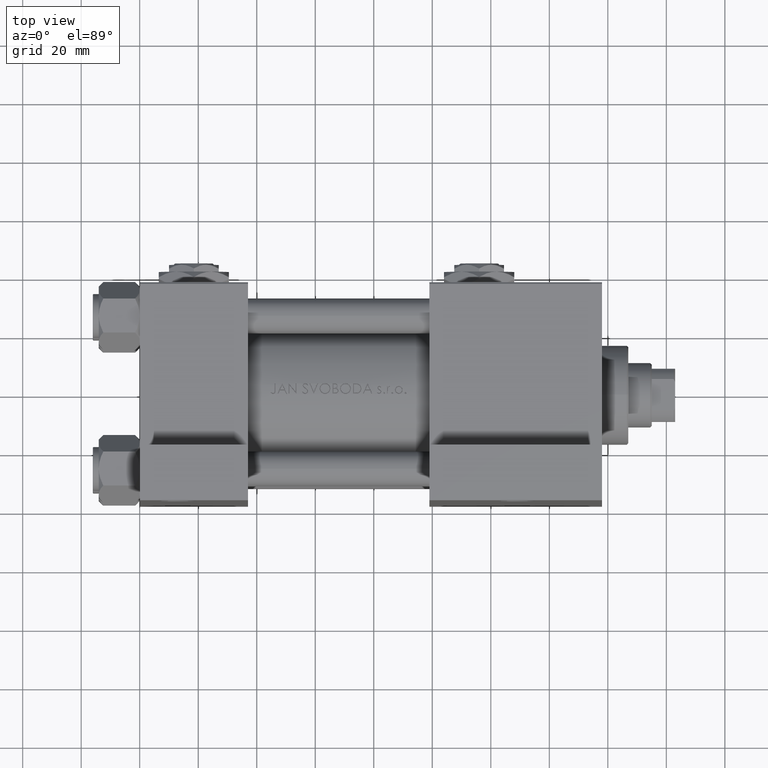
[diagram: clean part render]
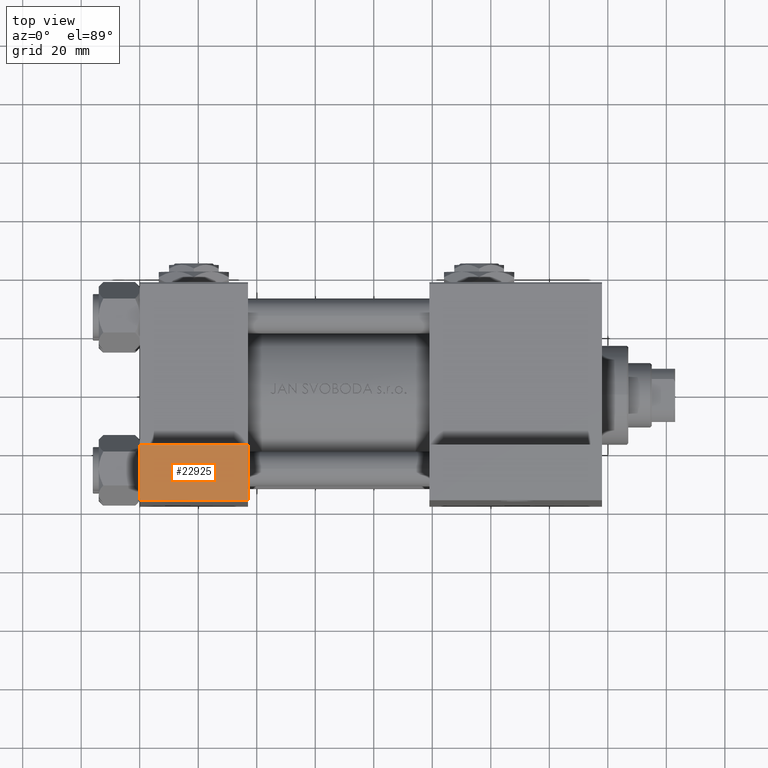
[diagram: same view with one face highlighted and labeled with its STEP entity id]
A machine part, top view. The second image highlights one B-rep face of the part: STEP entity #22925.
In plain terms, the highlighted planar face has unit normal (0, 0, 1).
Its self-contained STEP definition (entity closure, byte-faithful):
#2863 = EDGE_CURVE ( 'NONE', #17655, #12797, #47961, .T. ) ;
#6317 = CARTESIAN_POINT ( 'NONE',  ( 3.977209754999747208E-16, -63.50000000000000000, -37.49999999999999289 ) ) ;
#7331 = DIRECTION ( 'NONE',  ( 1.000000000000000000, 0.000000000000000000, 0.000000000000000000 ) ) ;
#7407 = EDGE_LOOP ( 'NONE', ( #20606, #21463, #17558, #41141 ) ) ;
#7761 = CARTESIAN_POINT ( 'NONE',  ( 3.977209754999747208E-16, -63.50000000000000000, -18.50000000000000355 ) ) ;
#9408 = DIRECTION ( 'NONE',  ( 0.000000000000000000, -1.734723475976806848E-16, -1.000000000000000000 ) ) ;
#10783 = VERTEX_POINT ( 'NONE', #24120 ) ;
#11060 = LINE ( 'NONE', #11546, #38242 ) ;
#11546 = CARTESIAN_POINT ( 'NONE',  ( 3.977209754999747208E-16, -63.50000000000000000, -18.50000000000000355 ) ) ;
#12797 = VERTEX_POINT ( 'NONE', #37684 ) ;
#13735 = AXIS2_PLACEMENT_3D ( 'NONE', #44802, #24780, #39864 ) ;
#16236 = LINE ( 'NONE', #31324, #23701 ) ;
#17558 = ORIENTED_EDGE ( 'NONE', *, *, #2863, .F. ) ;
#17655 = VERTEX_POINT ( 'NONE', #30366 ) ;
#20606 = ORIENTED_EDGE ( 'NONE', *, *, #23934, .F. ) ;
#21343 = VECTOR ( 'NONE', #9408, 1000.000000000000000 ) ;
#21463 = ORIENTED_EDGE ( 'NONE', *, *, #33673, .T. ) ;
#22925 = ADVANCED_FACE ( 'NONE', ( #29701 ), #48047, .T. ) ;
#23701 = VECTOR ( 'NONE', #35534, 1000.000000000000000 ) ;
#23934 = EDGE_CURVE ( 'NONE', #25219, #10783, #11060, .T. ) ;
#24120 = CARTESIAN_POINT ( 'NONE',  ( 37.00000000000000000, -63.50000000000000000, -18.50000000000000355 ) ) ;
#24780 = DIRECTION ( 'NONE',  ( 0.000000000000000000, -1.000000000000000000, 1.734723475976806848E-16 ) ) ;
#25219 = VERTEX_POINT ( 'NONE', #7761 ) ;
#29701 = FACE_OUTER_BOUND ( 'NONE', #7407, .T. ) ;
#30366 = CARTESIAN_POINT ( 'NONE',  ( 37.00000000000000000, -63.50000000000000000, -37.49999999999999289 ) ) ;
#31324 = CARTESIAN_POINT ( 'NONE',  ( 37.00000000000000000, -63.49999999999998579, 26.72167621838007889 ) ) ;
#31965 = CARTESIAN_POINT ( 'NONE',  ( 3.977209754999747208E-16, -63.49999999999998579, 26.72167621838007889 ) ) ;
#33673 = EDGE_CURVE ( 'NONE', #25219, #12797, #44342, .T. ) ;
#33921 = EDGE_CURVE ( 'NONE', #10783, #17655, #16236, .T. ) ;
#35534 = DIRECTION ( 'NONE',  ( 0.000000000000000000, -1.734723475976806848E-16, -1.000000000000000000 ) ) ;
#37684 = CARTESIAN_POINT ( 'NONE',  ( 3.977209754999747208E-16, -63.50000000000000000, -37.49999999999999289 ) ) ;
#38242 = VECTOR ( 'NONE', #7331, 1000.000000000000000 ) ;
#39864 = DIRECTION ( 'NONE',  ( 0.000000000000000000, -1.734723475976806848E-16, -1.000000000000000000 ) ) ;
#41141 = ORIENTED_EDGE ( 'NONE', *, *, #33921, .F. ) ;
#43738 = DIRECTION ( 'NONE',  ( -1.000000000000000000, -0.000000000000000000, -0.000000000000000000 ) ) ;
#44342 = LINE ( 'NONE', #31965, #21343 ) ;
#44802 = CARTESIAN_POINT ( 'NONE',  ( 3.977209754999747208E-16, -63.49999999999998579, 26.72167621838007889 ) ) ;
#46379 = VECTOR ( 'NONE', #43738, 1000.000000000000000 ) ;
#47961 = LINE ( 'NONE', #6317, #46379 ) ;
#48047 = PLANE ( 'NONE',  #13735 ) ;